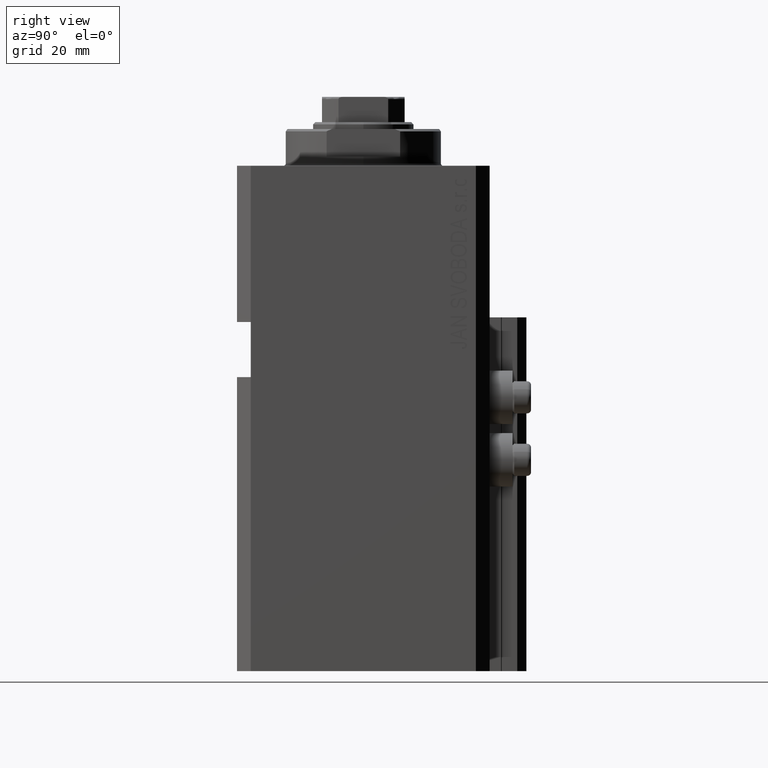
[diagram: clean part render]
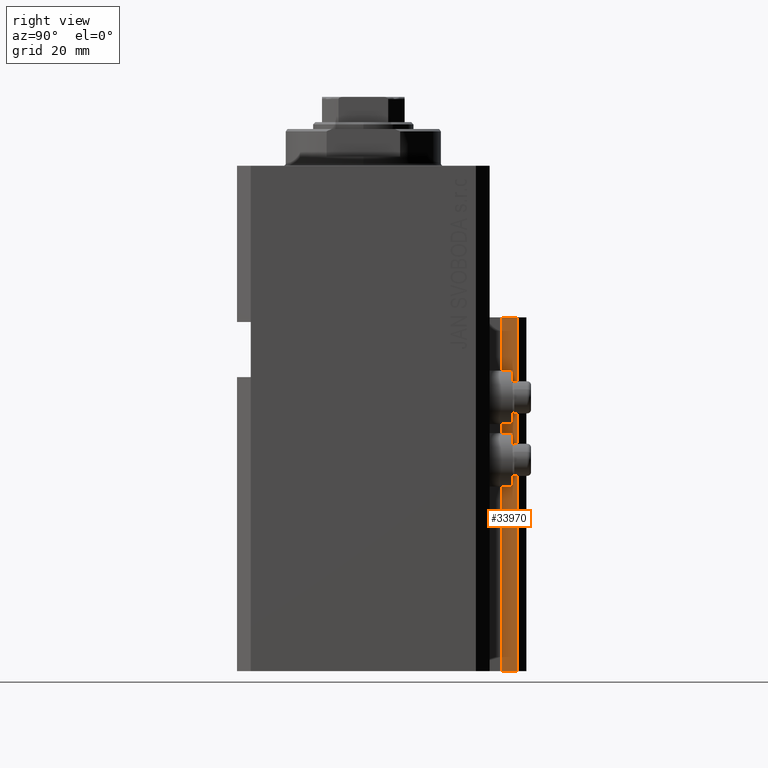
[diagram: same view with one face highlighted and labeled with its STEP entity id]
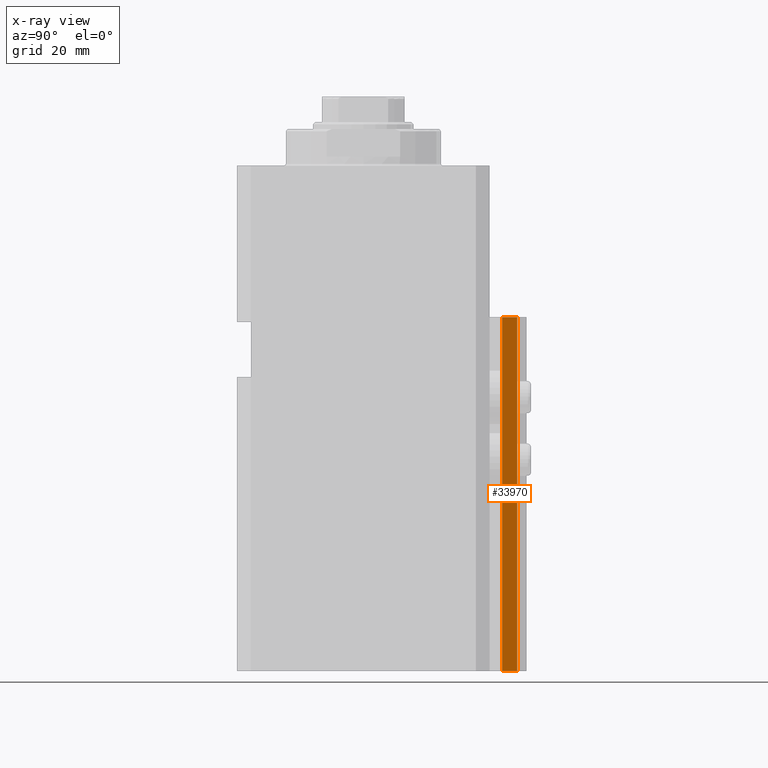
[diagram: x-ray of the same camera — body ghosted, the highlighted face saturated]
A machine part, right view. The second image highlights one B-rep face of the part: STEP entity #33970.
The next image is the same camera in x-ray: the body ghosted, the highlighted face saturated — about 0% of this face is hidden behind the body in this view.
In plain terms, the highlighted planar face has unit normal (1, 0, 0).
Its self-contained STEP definition (entity closure, byte-faithful):
#744 = EDGE_CURVE ( 'NONE', #25173, #13905, #41507, .T. ) ;
#1482 = AXIS2_PLACEMENT_3D ( 'NONE', #17041, #46245, #28291 ) ;
#1702 = EDGE_CURVE ( 'NONE', #46590, #33023, #6809, .T. ) ;
#3428 = ORIENTED_EDGE ( 'NONE', *, *, #1702, .T. ) ;
#6809 = LINE ( 'NONE', #40073, #35757 ) ;
#7377 = ORIENTED_EDGE ( 'NONE', *, *, #744, .F. ) ;
#8384 = ORIENTED_EDGE ( 'NONE', *, *, #14239, .T. ) ;
#8811 = CARTESIAN_POINT ( 'NONE',  ( 12.00000000000000178, 30.20000000000002061, -33.00000000000000000 ) ) ;
#10260 = ORIENTED_EDGE ( 'NONE', *, *, #21499, .F. ) ;
#10999 = CARTESIAN_POINT ( 'NONE',  ( 12.00000000000000178, 30.20000000000002061, -33.00000000000000000 ) ) ;
#11651 = VECTOR ( 'NONE', #31064, 1000.000000000000000 ) ;
#13905 = VERTEX_POINT ( 'NONE', #10999 ) ;
#14215 = DIRECTION ( 'NONE',  ( 0.000000000000000000, 0.000000000000000000, 1.000000000000000000 ) ) ;
#14239 = EDGE_CURVE ( 'NONE', #25173, #46590, #15975, .T. ) ;
#15698 = VECTOR ( 'NONE', #38019, 1000.000000000000000 ) ;
#15975 = LINE ( 'NONE', #38490, #11651 ) ;
#16614 = VECTOR ( 'NONE', #30508, 1000.000000000000000 ) ;
#17041 = CARTESIAN_POINT ( 'NONE',  ( 12.00000000000000178, 30.20000000000002061, -110.0000000000000000 ) ) ;
#17370 = CARTESIAN_POINT ( 'NONE',  ( 12.00000000000000178, 30.20000000000002061, -110.0000000000000000 ) ) ;
#18747 = CARTESIAN_POINT ( 'NONE',  ( 12.00000000000000000, 33.50000000000001421, -110.0000000000000000 ) ) ;
#20402 = PLANE ( 'NONE',  #1482 ) ;
#21499 = EDGE_CURVE ( 'NONE', #13905, #33023, #41594, .T. ) ;
#25173 = VERTEX_POINT ( 'NONE', #17370 ) ;
#25681 = CARTESIAN_POINT ( 'NONE',  ( 12.00000000000000000, 33.50000000000001421, -33.00000000000000000 ) ) ;
#26663 = CARTESIAN_POINT ( 'NONE',  ( 12.00000000000000178, 30.20000000000002061, -110.0000000000000000 ) ) ;
#28291 = DIRECTION ( 'NONE',  ( -5.256737805990335883E-16, 1.000000000000000000, 0.000000000000000000 ) ) ;
#30508 = DIRECTION ( 'NONE',  ( 0.000000000000000000, 0.000000000000000000, 1.000000000000000000 ) ) ;
#31064 = DIRECTION ( 'NONE',  ( -5.256737805990334897E-16, 1.000000000000000000, 0.000000000000000000 ) ) ;
#31417 = EDGE_LOOP ( 'NONE', ( #10260, #7377, #8384, #3428 ) ) ;
#33023 = VERTEX_POINT ( 'NONE', #25681 ) ;
#33970 = ADVANCED_FACE ( 'NONE', ( #42652 ), #20402, .T. ) ;
#35757 = VECTOR ( 'NONE', #14215, 1000.000000000000000 ) ;
#38019 = DIRECTION ( 'NONE',  ( -5.256737805990334897E-16, 1.000000000000000000, 0.000000000000000000 ) ) ;
#38490 = CARTESIAN_POINT ( 'NONE',  ( 12.00000000000000178, 30.20000000000002061, -110.0000000000000000 ) ) ;
#40073 = CARTESIAN_POINT ( 'NONE',  ( 12.00000000000000000, 33.50000000000001421, -110.0000000000000000 ) ) ;
#41507 = LINE ( 'NONE', #26663, #16614 ) ;
#41594 = LINE ( 'NONE', #8811, #15698 ) ;
#42652 = FACE_OUTER_BOUND ( 'NONE', #31417, .T. ) ;
#46245 = DIRECTION ( 'NONE',  ( 1.000000000000000000, 5.256737805990335883E-16, -0.000000000000000000 ) ) ;
#46590 = VERTEX_POINT ( 'NONE', #18747 ) ;